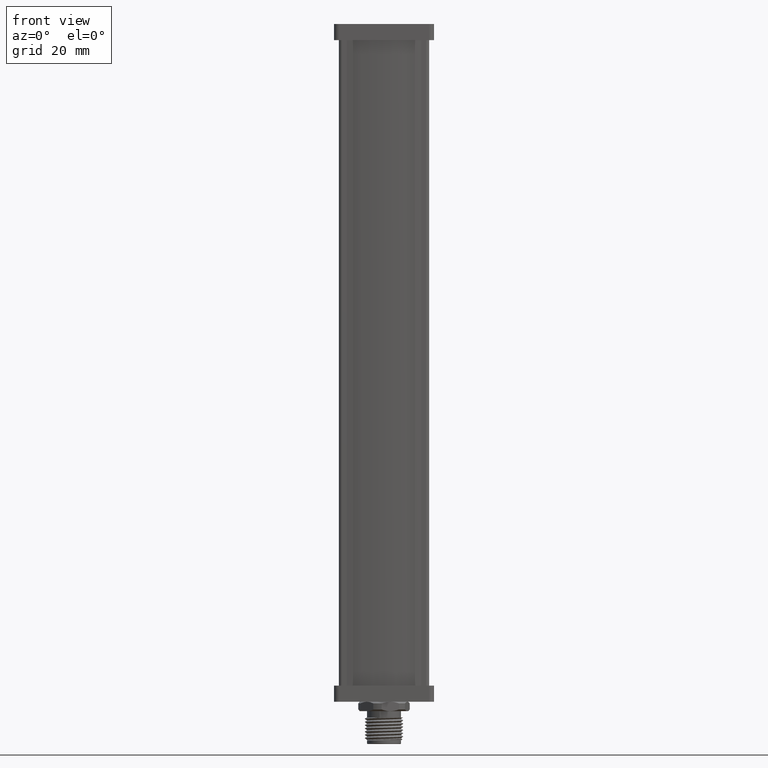
[diagram: clean part render]
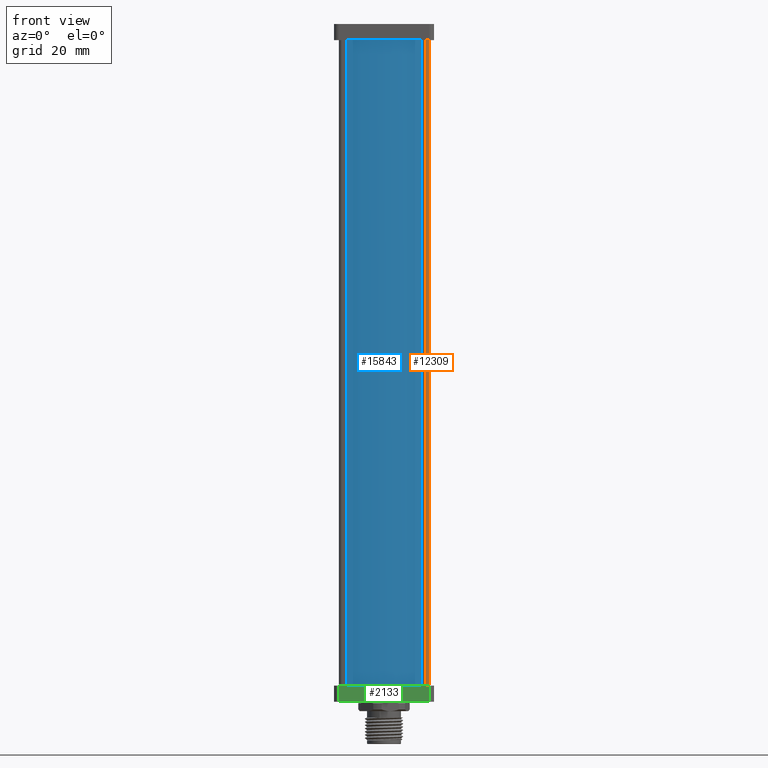
[diagram: same view with three faces highlighted in distinct colors, each labeled with its STEP entity id]
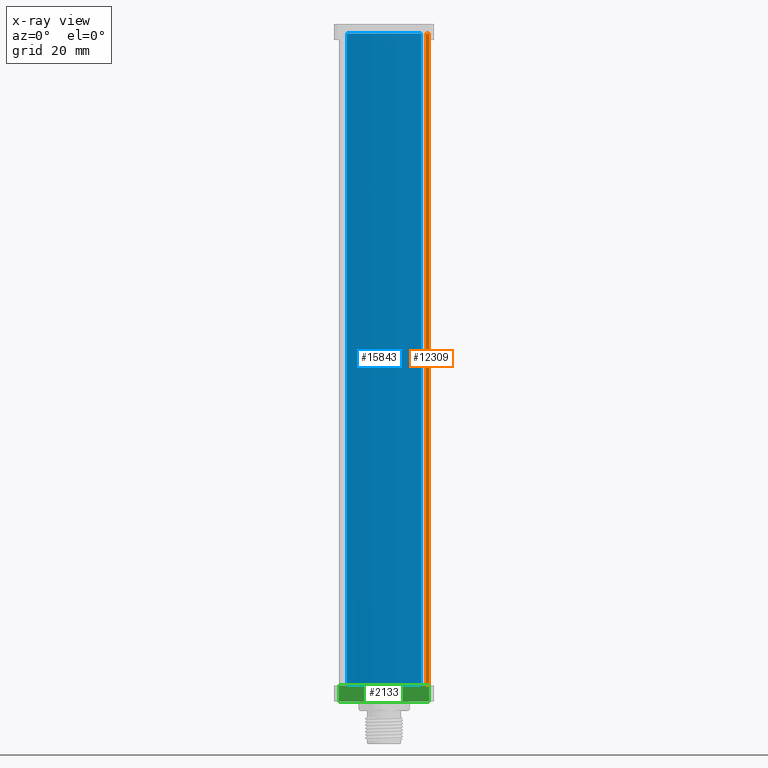
[diagram: x-ray of the same camera — body ghosted, the three highlighted faces saturated]
A machine part, front view with three faces highlighted in distinct colors.
The next image is the same camera in x-ray (body ghosted, the three faces saturated) — at least one of them is partly hidden behind the body in this view.
Their STEP definitions:

[orange] entity #12309 — the highlighted cylindrical surface (edge-blend (fillet) strip) has radius 1 mm, axis along (-0, 0, 1).
#67 = DIRECTION ( 'NONE',  ( -1.000000000000000000, 0.000000000000000000, 0.000000000000000000 ) ) ;
#148 = CIRCLE ( 'NONE', #5243, 0.9999999999999991118 ) ;
#1051 = CARTESIAN_POINT ( 'NONE',  ( 12.99999999999999822, 102.0000000000000142, 10.00000000000001066 ) ) ;
#1453 = AXIS2_PLACEMENT_3D ( 'NONE', #10883, #15641, #67 ) ;
#3052 = CIRCLE ( 'NONE', #22304, 1.000000000000000888 ) ;
#5049 = ORIENTED_EDGE ( 'NONE', *, *, #6243, .F. ) ;
#5243 = AXIS2_PLACEMENT_3D ( 'NONE', #7681, #7901, #20294 ) ;
#5407 = CYLINDRICAL_SURFACE ( 'NONE', #1453, 0.9999999999999991118 ) ;
#6057 = CARTESIAN_POINT ( 'NONE',  ( 13.99999999999999822, -90.00000000000000000, 10.00000000000001066 ) ) ;
#6243 = EDGE_CURVE ( 'NONE', #21541, #10527, #16478, .T. ) ;
#7681 = CARTESIAN_POINT ( 'NONE',  ( 13.00000000000000355, -102.0000000000000000, 10.00000000000001066 ) ) ;
#7901 = DIRECTION ( 'NONE',  ( 0.000000000000000000, -1.000000000000000000, 0.000000000000000000 ) ) ;
#7945 = VECTOR ( 'NONE', #14750, 1000.000000000000000 ) ;
#8404 = ORIENTED_EDGE ( 'NONE', *, *, #15510, .T. ) ;
#8573 = CARTESIAN_POINT ( 'NONE',  ( 13.00000000000000355, -102.0000000000000000, 11.00000000000001066 ) ) ;
#8982 = ORIENTED_EDGE ( 'NONE', *, *, #15952, .F. ) ;
#9428 = CARTESIAN_POINT ( 'NONE',  ( 13.99999999999999822, -102.0000000000000000, 10.00000000000001066 ) ) ;
#10527 = VERTEX_POINT ( 'NONE', #21649 ) ;
#10563 = VERTEX_POINT ( 'NONE', #12998 ) ;
#10883 = CARTESIAN_POINT ( 'NONE',  ( 13.00000000000000355, -90.00000000000000000, 10.00000000000001066 ) ) ;
#11516 = DIRECTION ( 'NONE',  ( -1.000000000000000000, 0.000000000000000000, 0.000000000000000000 ) ) ;
#12309 = ADVANCED_FACE ( 'NONE', ( #20991 ), #5407, .T. ) ;
#12380 = VECTOR ( 'NONE', #18119, 1000.000000000000000 ) ;
#12998 = CARTESIAN_POINT ( 'NONE',  ( 13.99999999999999645, 102.0000000000000142, 10.00000000000001066 ) ) ;
#14750 = DIRECTION ( 'NONE',  ( 0.000000000000000000, 1.000000000000000000, 0.000000000000000000 ) ) ;
#14912 = LINE ( 'NONE', #6057, #12380 ) ;
#15510 = EDGE_CURVE ( 'NONE', #10563, #10527, #3052, .T. ) ;
#15641 = DIRECTION ( 'NONE',  ( 0.000000000000000000, 1.000000000000000000, 0.000000000000000000 ) ) ;
#15952 = EDGE_CURVE ( 'NONE', #19900, #21541, #148, .T. ) ;
#16244 = CARTESIAN_POINT ( 'NONE',  ( 13.00000000000000355, -90.00000000000000000, 11.00000000000001066 ) ) ;
#16416 = DIRECTION ( 'NONE',  ( 0.000000000000000000, -1.000000000000000000, 0.000000000000000000 ) ) ;
#16478 = LINE ( 'NONE', #16244, #7945 ) ;
#16533 = EDGE_LOOP ( 'NONE', ( #21520, #8404, #5049, #8982 ) ) ;
#18119 = DIRECTION ( 'NONE',  ( 0.000000000000000000, 1.000000000000000000, 0.000000000000000000 ) ) ;
#19900 = VERTEX_POINT ( 'NONE', #9428 ) ;
#20294 = DIRECTION ( 'NONE',  ( -1.000000000000000000, 0.000000000000000000, 0.000000000000000000 ) ) ;
#20991 = FACE_OUTER_BOUND ( 'NONE', #16533, .T. ) ;
#21520 = ORIENTED_EDGE ( 'NONE', *, *, #21762, .T. ) ;
#21541 = VERTEX_POINT ( 'NONE', #8573 ) ;
#21649 = CARTESIAN_POINT ( 'NONE',  ( 12.99999999999999822, 102.0000000000000142, 11.00000000000001066 ) ) ;
#21762 = EDGE_CURVE ( 'NONE', #19900, #10563, #14912, .T. ) ;
#22304 = AXIS2_PLACEMENT_3D ( 'NONE', #1051, #16416, #11516 ) ;

[blue] entity #15843 — the highlighted cylindrical surface (partial cylindrical patch) has radius 66.625 mm, axis along (0, 0, -1).
#550 = CARTESIAN_POINT ( 'NONE',  ( 3.469446951953614189E-15, -102.0000000000000000, -55.62499999999990763 ) ) ;
#729 = VERTEX_POINT ( 'NONE', #13849 ) ;
#752 = CIRCLE ( 'NONE', #3284, 66.62500000000000000 ) ;
#1706 = ORIENTED_EDGE ( 'NONE', *, *, #5631, .F. ) ;
#1726 = DIRECTION ( 'NONE',  ( 0.000000000000000000, -1.000000000000000000, 0.000000000000000000 ) ) ;
#2308 = CARTESIAN_POINT ( 'NONE',  ( 3.469446951953614189E-15, 102.0000000000000142, -55.62499999999990763 ) ) ;
#2419 = DIRECTION ( 'NONE',  ( 1.000000000000000000, 0.000000000000000000, -1.041485013719659077E-16 ) ) ;
#3196 = EDGE_CURVE ( 'NONE', #8109, #8788, #19565, .T. ) ;
#3284 = AXIS2_PLACEMENT_3D ( 'NONE', #2308, #9352, #2419 ) ;
#3358 = DIRECTION ( 'NONE',  ( 0.000000000000000000, -1.000000000000000000, 0.000000000000000000 ) ) ;
#3433 = AXIS2_PLACEMENT_3D ( 'NONE', #10181, #3358, #20862 ) ;
#4294 = DIRECTION ( 'NONE',  ( 0.000000000000000000, -1.000000000000000000, 0.000000000000000000 ) ) ;
#5631 = EDGE_CURVE ( 'NONE', #8788, #12782, #10446, .T. ) ;
#6040 = VECTOR ( 'NONE', #14087, 1000.000000000000000 ) ;
#6600 = CARTESIAN_POINT ( 'NONE',  ( 11.49999999999999822, 102.0000000000000142, 10.00000000000000000 ) ) ;
#6996 = FACE_OUTER_BOUND ( 'NONE', #14766, .T. ) ;
#7378 = EDGE_CURVE ( 'NONE', #729, #12782, #12187, .T. ) ;
#8109 = VERTEX_POINT ( 'NONE', #6600 ) ;
#8788 = VERTEX_POINT ( 'NONE', #11765 ) ;
#9212 = CARTESIAN_POINT ( 'NONE',  ( 11.49999999999999822, 11.79025020938900781, 10.00000000000000000 ) ) ;
#9352 = DIRECTION ( 'NONE',  ( 0.000000000000000000, 1.000000000000000000, 0.000000000000000000 ) ) ;
#9646 = DIRECTION ( 'NONE',  ( -1.000000000000000000, 0.000000000000000000, -1.041485013719659077E-16 ) ) ;
#10181 = CARTESIAN_POINT ( 'NONE',  ( 3.469446951953614189E-15, 11.79025020938900781, -55.62499999999990763 ) ) ;
#10446 = CIRCLE ( 'NONE', #18089, 66.62500000000000000 ) ;
#11323 = ORIENTED_EDGE ( 'NONE', *, *, #7378, .T. ) ;
#11765 = CARTESIAN_POINT ( 'NONE',  ( 11.49999999999999822, -102.0000000000000000, 10.00000000000000000 ) ) ;
#12187 = LINE ( 'NONE', #18792, #17646 ) ;
#12782 = VERTEX_POINT ( 'NONE', #20744 ) ;
#13694 = ORIENTED_EDGE ( 'NONE', *, *, #21757, .F. ) ;
#13849 = CARTESIAN_POINT ( 'NONE',  ( -11.50000000000000888, 102.0000000000000142, 10.00000000000000711 ) ) ;
#14087 = DIRECTION ( 'NONE',  ( 0.000000000000000000, -1.000000000000000000, 0.000000000000000000 ) ) ;
#14766 = EDGE_LOOP ( 'NONE', ( #19291, #13694, #11323, #1706 ) ) ;
#15843 = ADVANCED_FACE ( 'NONE', ( #6996 ), #18721, .T. ) ;
#17646 = VECTOR ( 'NONE', #1726, 1000.000000000000000 ) ;
#18089 = AXIS2_PLACEMENT_3D ( 'NONE', #550, #4294, #9646 ) ;
#18721 = CYLINDRICAL_SURFACE ( 'NONE', #3433, 66.62500000000000000 ) ;
#18792 = CARTESIAN_POINT ( 'NONE',  ( -11.50000000000000888, 11.79025020938900781, 9.999999999999996447 ) ) ;
#19291 = ORIENTED_EDGE ( 'NONE', *, *, #3196, .F. ) ;
#19565 = LINE ( 'NONE', #9212, #6040 ) ;
#20744 = CARTESIAN_POINT ( 'NONE',  ( -11.50000000000000888, -102.0000000000000000, 9.999999999999996447 ) ) ;
#20862 = DIRECTION ( 'NONE',  ( 1.000000000000000000, 0.000000000000000000, 1.041485013719659077E-16 ) ) ;
#21757 = EDGE_CURVE ( 'NONE', #729, #8109, #752, .T. ) ;

[green] entity #2133 — the highlighted planar face has unit normal (-0, 1, -0).
#98 = EDGE_LOOP ( 'NONE', ( #2862, #4977, #19182, #6097 ) ) ;
#449 = CARTESIAN_POINT ( 'NONE',  ( 15.50000000000000178, -99.99999999999998579, 12.50000000000001066 ) ) ;
#766 = VECTOR ( 'NONE', #16150, 1000.000000000000000 ) ;
#1392 = DIRECTION ( 'NONE',  ( -1.397585237217057254E-16, 0.000000000000000000, -1.000000000000000000 ) ) ;
#1814 = AXIS2_PLACEMENT_3D ( 'NONE', #16764, #1392, #6528 ) ;
#2133 = ADVANCED_FACE ( 'NONE', ( #20282 ), #18581, .F. ) ;
#2269 = LINE ( 'NONE', #449, #7675 ) ;
#2862 = ORIENTED_EDGE ( 'NONE', *, *, #18697, .F. ) ;
#2966 = CARTESIAN_POINT ( 'NONE',  ( -14.00000000000000711, -99.99999999999998579, 12.50000000000000711 ) ) ;
#4429 = LINE ( 'NONE', #9215, #766 ) ;
#4977 = ORIENTED_EDGE ( 'NONE', *, *, #21346, .T. ) ;
#5276 = VERTEX_POINT ( 'NONE', #14890 ) ;
#5822 = VECTOR ( 'NONE', #11832, 1000.000000000000000 ) ;
#6097 = ORIENTED_EDGE ( 'NONE', *, *, #22293, .T. ) ;
#6528 = DIRECTION ( 'NONE',  ( -1.000000000000000000, 0.000000000000000000, 1.397585237217057254E-16 ) ) ;
#6803 = CARTESIAN_POINT ( 'NONE',  ( -14.00000000000000711, -99.99999999999998579, 12.50000000000000711 ) ) ;
#7178 = CARTESIAN_POINT ( 'NONE',  ( 15.50000000000000178, -105.0000000000000000, 12.50000000000001066 ) ) ;
#7675 = VECTOR ( 'NONE', #9546, 1000.000000000000000 ) ;
#8559 = EDGE_CURVE ( 'NONE', #5276, #18045, #13871, .T. ) ;
#9215 = CARTESIAN_POINT ( 'NONE',  ( 14.00000000000000178, -99.99999999999998579, 12.50000000000001066 ) ) ;
#9458 = CARTESIAN_POINT ( 'NONE',  ( 14.00000000000000178, -99.99999999999998579, 12.50000000000001066 ) ) ;
#9546 = DIRECTION ( 'NONE',  ( 1.000000000000000000, 0.000000000000000000, -1.397585237217057254E-16 ) ) ;
#11832 = DIRECTION ( 'NONE',  ( 0.000000000000000000, -1.000000000000000000, 0.000000000000000000 ) ) ;
#13871 = LINE ( 'NONE', #7178, #18046 ) ;
#14890 = CARTESIAN_POINT ( 'NONE',  ( -14.00000000000000711, -105.0000000000000000, 12.50000000000000711 ) ) ;
#16150 = DIRECTION ( 'NONE',  ( 0.000000000000000000, 1.000000000000000000, 0.000000000000000000 ) ) ;
#16764 = CARTESIAN_POINT ( 'NONE',  ( 15.50000000000000178, -99.99999999999998579, 12.50000000000001066 ) ) ;
#18045 = VERTEX_POINT ( 'NONE', #20737 ) ;
#18046 = VECTOR ( 'NONE', #19118, 1000.000000000000000 ) ;
#18581 = PLANE ( 'NONE',  #1814 ) ;
#18697 = EDGE_CURVE ( 'NONE', #18988, #19389, #2269, .T. ) ;
#18988 = VERTEX_POINT ( 'NONE', #6803 ) ;
#19118 = DIRECTION ( 'NONE',  ( 1.000000000000000000, 0.000000000000000000, -1.397585237217057254E-16 ) ) ;
#19182 = ORIENTED_EDGE ( 'NONE', *, *, #8559, .T. ) ;
#19389 = VERTEX_POINT ( 'NONE', #9458 ) ;
#20140 = LINE ( 'NONE', #2966, #5822 ) ;
#20282 = FACE_OUTER_BOUND ( 'NONE', #98, .T. ) ;
#20737 = CARTESIAN_POINT ( 'NONE',  ( 14.00000000000000178, -105.0000000000000000, 12.50000000000001066 ) ) ;
#21346 = EDGE_CURVE ( 'NONE', #18988, #5276, #20140, .T. ) ;
#22293 = EDGE_CURVE ( 'NONE', #18045, #19389, #4429, .T. ) ;